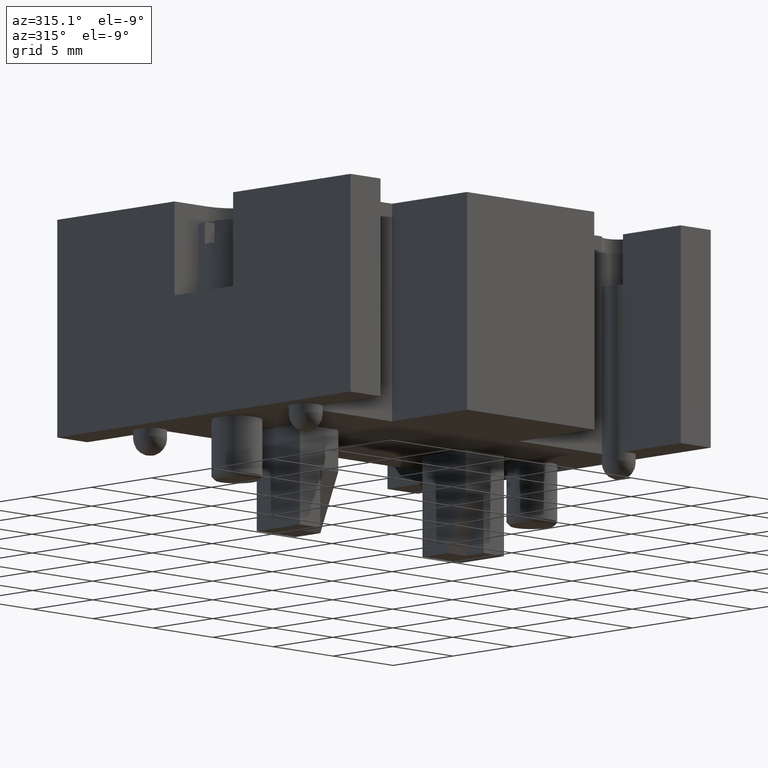
[diagram: clean part render]
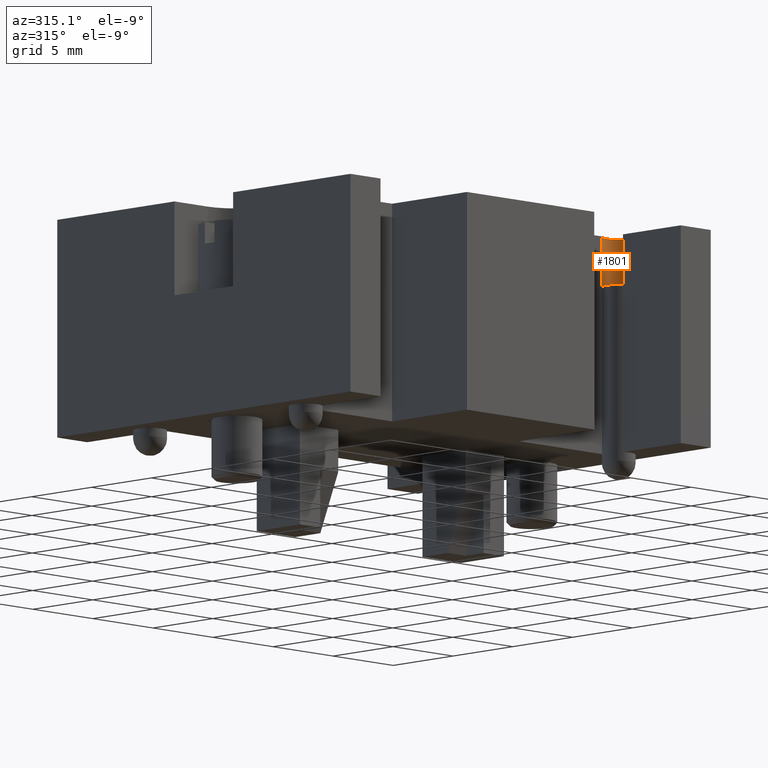
[diagram: same view with one face highlighted and labeled with its STEP entity id]
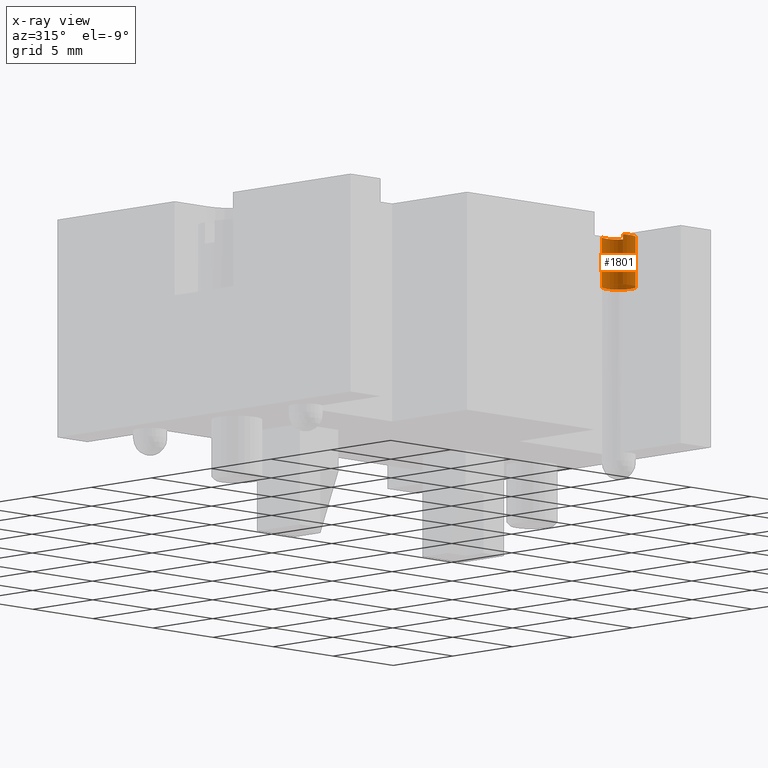
[diagram: x-ray of the same camera — body ghosted, the highlighted face saturated]
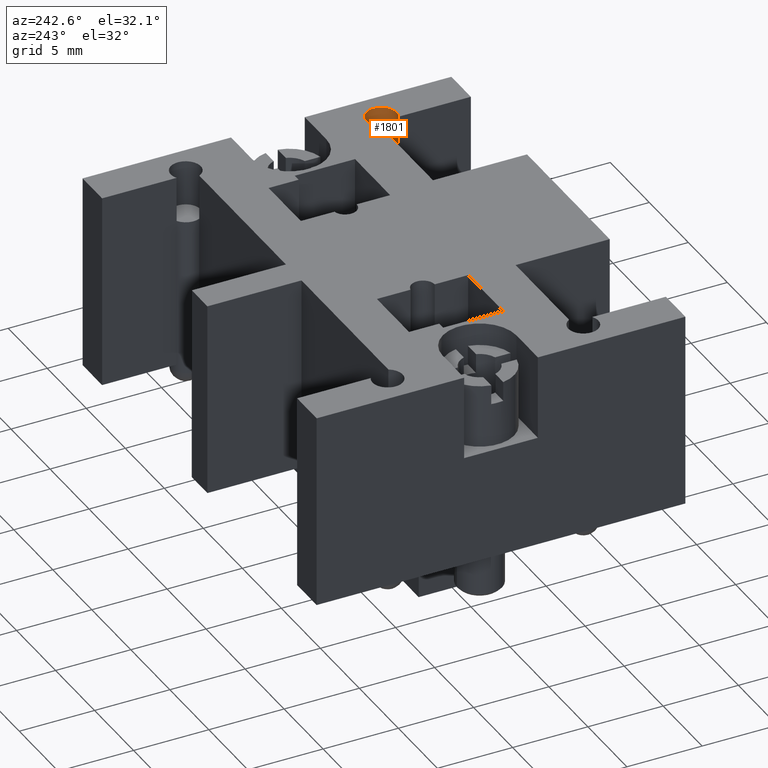
[diagram: same view with one face highlighted and labeled with its STEP entity id]
A machine part, auxiliary view. The second image highlights one B-rep face of the part: STEP entity #1801.
The next image is the same camera in x-ray: the body ghosted, the highlighted face saturated — about 0% of this face is hidden behind the body in this view.
A second angle (auxiliary view) of the same face is appended — the face is thin or edge-on in the first view.
In plain terms, the highlighted cylindrical surface (edge-blend (fillet) strip) has radius 1 mm, axis along (0, 0, -1).
Its self-contained STEP definition (entity closure, byte-faithful):
#1272=CARTESIAN_POINT('',(2.447977132707658,-1.815607957173557,10.0));
#1273=VERTEX_POINT('',#1272);
#1282=CARTESIAN_POINT('',(2.122356801251625,-0.385356474333545,10.0));
#1283=VERTEX_POINT('',#1282);
#1318=CARTESIAN_POINT('',(2.122356801251625,-0.385356474333545,13.0));
#1319=VERTEX_POINT('',#1318);
#1320=CARTESIAN_POINT('',(2.122356801251625,-0.385356474333545,10.0));
#1321=DIRECTION('',(0.0,0.0,1.0));
#1322=VECTOR('',#1321,3.0);
#1323=LINE('',#1320,#1322);
#1324=EDGE_CURVE('',#1283,#1319,#1323,.T.);
#1766=CARTESIAN_POINT('',(2.947977132707660,-0.949582553389120,10.0));
#1767=DIRECTION('',(0.0,0.0,1.0));
#1768=DIRECTION('',(-1.0,0.0,0.0));
#1769=AXIS2_PLACEMENT_3D('',#1766,#1767,#1768);
#1770=CIRCLE('',#1769,1.0);
#1771=EDGE_CURVE('',#1273,#1283,#1770,.T.);
#1777=CARTESIAN_POINT('',(2.947977132707660,-0.949582553389120,13.0));
#1778=DIRECTION('',(0.0,0.0,-1.0));
#1779=DIRECTION('',(-1.0,0.0,0.0));
#1780=AXIS2_PLACEMENT_3D('',#1777,#1778,#1779);
#1781=CYLINDRICAL_SURFACE('',#1780,1.0);
#1782=CARTESIAN_POINT('',(2.447977132707658,-1.815607957173557,13.0));
#1783=VERTEX_POINT('',#1782);
#1784=CARTESIAN_POINT('',(2.447977132707658,-1.815607957173557,13.0));
#1785=DIRECTION('',(0.0,0.0,-1.0));
#1786=VECTOR('',#1785,3.0);
#1787=LINE('',#1784,#1786);
#1788=EDGE_CURVE('',#1783,#1273,#1787,.T.);
#1789=ORIENTED_EDGE('',*,*,#1788,.F.);
#1790=CARTESIAN_POINT('',(2.947977132707660,-0.949582553389120,13.0));
#1791=DIRECTION('',(0.0,0.0,-1.0));
#1792=DIRECTION('',(-1.0,0.0,0.0));
#1793=AXIS2_PLACEMENT_3D('',#1790,#1791,#1792);
#1794=CIRCLE('',#1793,1.0);
#1795=EDGE_CURVE('',#1319,#1783,#1794,.T.);
#1796=ORIENTED_EDGE('',*,*,#1795,.F.);
#1797=ORIENTED_EDGE('',*,*,#1324,.F.);
#1798=ORIENTED_EDGE('',*,*,#1771,.F.);
#1799=EDGE_LOOP('',(#1789,#1796,#1797,#1798));
#1800=FACE_OUTER_BOUND('',#1799,.T.);
#1801=ADVANCED_FACE('',(#1800),#1781,.F.);